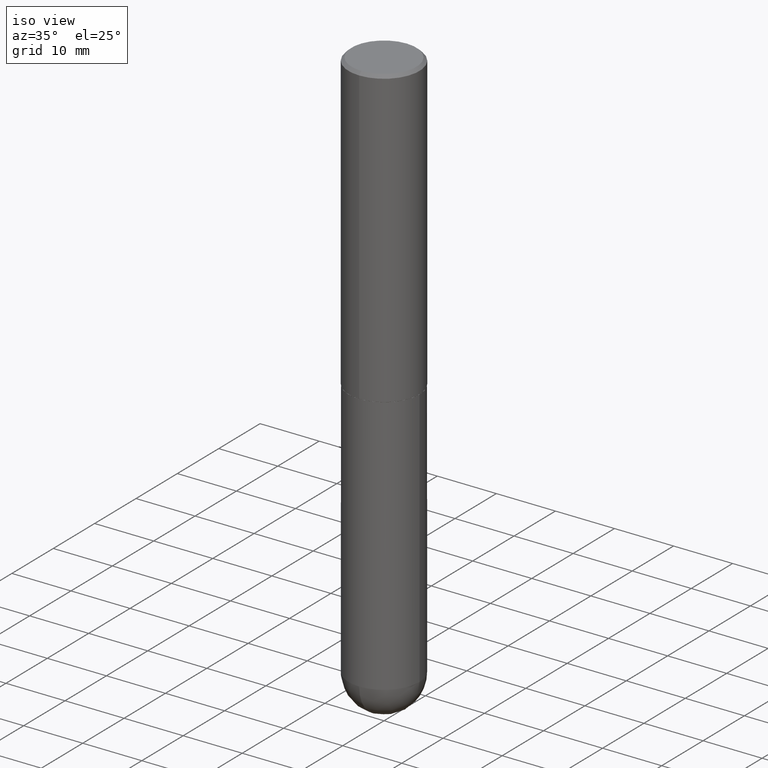
[diagram: clean part render]
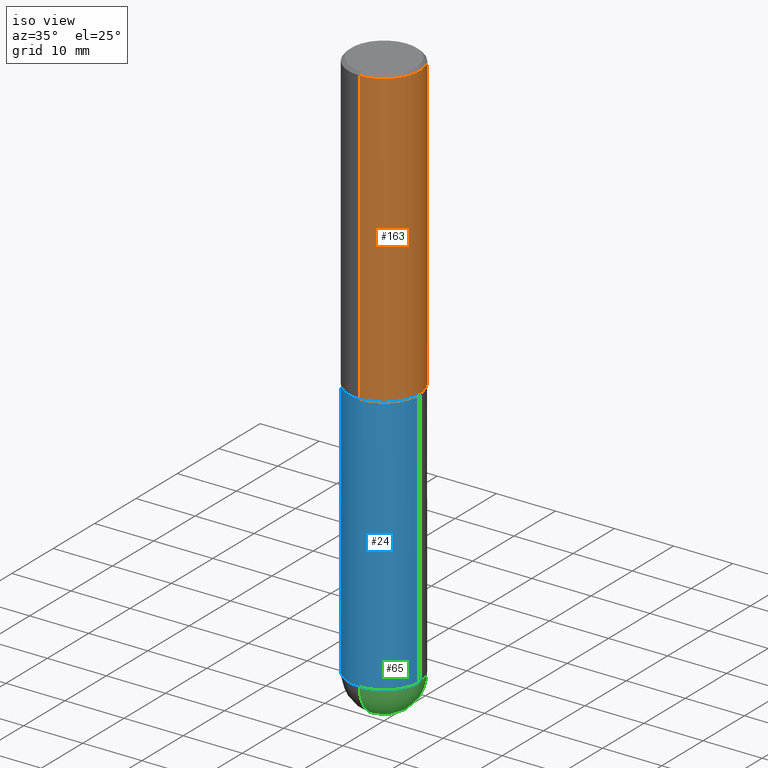
[diagram: same view with three faces highlighted in distinct colors, each labeled with its STEP entity id]
A machine part, iso view with three faces highlighted in distinct colors.
Their STEP definitions:

[orange] entity #163 — the highlighted cylindrical surface (partial cylindrical patch) has radius 5.9995 mm, axis along (-0, 0, 1).
#11 = VECTOR ( 'NONE', #204, 39.37007874015748143 ) ;
#22 = DIRECTION ( 'NONE',  ( -6.982962677686265922E-15, -1.000000000000000000, 3.487819265831411744E-15 ) ) ;
#30 = DIRECTION ( 'NONE',  ( -6.982962677686265133E-15, -1.000000000000000000, 3.469747663417773847E-15 ) ) ;
#41 = EDGE_CURVE ( 'NONE', #383, #289, #73, .T. ) ;
#48 = DIRECTION ( 'NONE',  ( -6.982962677686265922E-15, -1.000000000000000000, 3.493171675597534146E-15 ) ) ;
#53 = CARTESIAN_POINT ( 'NONE',  ( 4.809137526040556277E-29, -6.872815271738149679E-15, -1.967500000000000249 ) ) ;
#60 = ORIENTED_EDGE ( 'NONE', *, *, #70, .F. ) ;
#66 = ORIENTED_EDGE ( 'NONE', *, *, #41, .T. ) ;
#70 = EDGE_CURVE ( 'NONE', #160, #131, #397, .T. ) ;
#73 = LINE ( 'NONE', #167, #11 ) ;
#74 = DIRECTION ( 'NONE',  ( -2.444288450338274442E-29, 3.493171675597534541E-15, 1.000000000000000000 ) ) ;
#77 = VECTOR ( 'NONE', #74, 39.37007874015748143 ) ;
#123 = ORIENTED_EDGE ( 'NONE', *, *, #208, .F. ) ;
#131 = VERTEX_POINT ( 'NONE', #171 ) ;
#134 = CARTESIAN_POINT ( 'NONE',  ( -1.649375784469449391E-15, -0.2362000000000070710, -1.967499999999999361 ) ) ;
#137 = CIRCLE ( 'NONE', #379, 0.2362000000000002153 ) ;
#160 = VERTEX_POINT ( 'NONE', #134 ) ;
#163 = ADVANCED_FACE ( 'NONE', ( #207 ), #360, .T. ) ;
#167 = CARTESIAN_POINT ( 'NONE',  ( 1.678301941865357183E-15, 0.2362000000000001043, -8.250871497761379229E-16 ) ) ;
#171 = CARTESIAN_POINT ( 'NONE',  ( -1.620449627073635079E-15, -0.2362000000000000766, -0.01999999999999922673 ) ) ;
#204 = DIRECTION ( 'NONE',  ( -2.444288450338274442E-29, 3.493171675597534541E-15, 1.000000000000000000 ) ) ;
#207 = FACE_OUTER_BOUND ( 'NONE', #230, .T. ) ;
#208 = EDGE_CURVE ( 'NONE', #131, #289, #316, .T. ) ;
#230 = EDGE_LOOP ( 'NONE', ( #287, #66, #123, #60 ) ) ;
#240 = CARTESIAN_POINT ( 'NONE',  ( -1.649375784469496722E-15, -0.2362000000000001043, 8.250871497761379229E-16 ) ) ;
#244 = CARTESIAN_POINT ( 'NONE',  ( 1.649375784469496525E-15, 0.2361999999999999378, -0.02000000000000087472 ) ) ;
#249 = AXIS2_PLACEMENT_3D ( 'NONE', #376, #372, #22 ) ;
#252 = CARTESIAN_POINT ( 'NONE',  ( 1.678301941865381835E-15, 0.2361999999999933597, -1.967500000000001137 ) ) ;
#260 = EDGE_CURVE ( 'NONE', #160, #383, #137, .T. ) ;
#261 = CARTESIAN_POINT ( 'NONE',  ( 0.000000000000000000, 0.000000000000000000, 0.000000000000000000 ) ) ;
#274 = DIRECTION ( 'NONE',  ( -2.444288450338274722E-29, 3.493171675597534541E-15, 1.000000000000000000 ) ) ;
#287 = ORIENTED_EDGE ( 'NONE', *, *, #260, .T. ) ;
#289 = VERTEX_POINT ( 'NONE', #244 ) ;
#316 = CIRCLE ( 'NONE', #249, 0.2361999999999999933 ) ;
#326 = AXIS2_PLACEMENT_3D ( 'NONE', #261, #336, #48 ) ;
#336 = DIRECTION ( 'NONE',  ( -2.444288450338274722E-29, 3.493171675597534541E-15, 1.000000000000000000 ) ) ;
#360 = CYLINDRICAL_SURFACE ( 'NONE', #326, 0.2362000000000001043 ) ;
#372 = DIRECTION ( 'NONE',  ( -2.444288450338274722E-29, 3.493171675597534541E-15, 1.000000000000000000 ) ) ;
#376 = CARTESIAN_POINT ( 'NONE',  ( 4.888576900676561635E-31, -6.986343351195086880E-17, -0.02000000000000005246 ) ) ;
#379 = AXIS2_PLACEMENT_3D ( 'NONE', #53, #274, #30 ) ;
#383 = VERTEX_POINT ( 'NONE', #252 ) ;
#397 = LINE ( 'NONE', #240, #77 ) ;

[blue] entity #24 — the highlighted cylindrical surface (partial cylindrical patch) has radius 5.9995 mm, axis along (-0, 0, 1).
#1 = ORIENTED_EDGE ( 'NONE', *, *, #42, .F. ) ;
#2 = VECTOR ( 'NONE', #267, 39.37007874015748143 ) ;
#10 = CARTESIAN_POINT ( 'NONE',  ( 0.000000000000000000, 0.000000000000000000, 0.000000000000000000 ) ) ;
#16 = CARTESIAN_POINT ( 'NONE',  ( -0.2361999999999999933, -8.218825635286365458E-15, -1.968500000000000139 ) ) ;
#20 = AXIS2_PLACEMENT_3D ( 'NONE', #272, #152, #342 ) ;
#24 = ADVANCED_FACE ( 'NONE', ( #357 ), #293, .T. ) ;
#38 = ORIENTED_EDGE ( 'NONE', *, *, #130, .T. ) ;
#40 = VERTEX_POINT ( 'NONE', #16 ) ;
#42 = EDGE_CURVE ( 'NONE', #317, #40, #138, .T. ) ;
#69 = ORIENTED_EDGE ( 'NONE', *, *, #291, .T. ) ;
#71 = AXIS2_PLACEMENT_3D ( 'NONE', #10, #296, #142 ) ;
#75 = CARTESIAN_POINT ( 'NONE',  ( -0.2361999999999999933, 1.678301941865356591E-15, -1.161852468318208757E-29 ) ) ;
#85 = LINE ( 'NONE', #212, #369 ) ;
#88 = CARTESIAN_POINT ( 'NONE',  ( -0.2361999999999999933, -8.218825635286368613E-15, -3.700800000000000090 ) ) ;
#103 = CARTESIAN_POINT ( 'NONE',  ( 9.050190957929953666E-29, -1.292127413879071357E-14, -3.700800000000000090 ) ) ;
#121 = AXIS2_PLACEMENT_3D ( 'NONE', #103, #203, #329 ) ;
#130 = EDGE_CURVE ( 'NONE', #354, #408, #232, .T. ) ;
#138 = LINE ( 'NONE', #75, #2 ) ;
#142 = DIRECTION ( 'NONE',  ( 1.000000000000000000, -6.982962677686266711E-15, 4.876176775795936353E-29 ) ) ;
#152 = DIRECTION ( 'NONE',  ( -2.445468806185136597E-29, 3.491481338843145583E-15, 1.000000000000000000 ) ) ;
#177 = DIRECTION ( 'NONE',  ( -2.445468806185136877E-29, 3.491481338843145188E-15, 1.000000000000000000 ) ) ;
#192 = ORIENTED_EDGE ( 'NONE', *, *, #353, .F. ) ;
#195 = EDGE_CURVE ( 'NONE', #408, #352, #85, .T. ) ;
#197 = CARTESIAN_POINT ( 'NONE',  ( 0.2361999999999999933, -8.522356799982228232E-15, -1.968500000000000139 ) ) ;
#200 = ORIENTED_EDGE ( 'NONE', *, *, #195, .T. ) ;
#203 = DIRECTION ( 'NONE',  ( -2.445468806185136597E-29, 3.491481338843145583E-15, 1.000000000000000000 ) ) ;
#205 = AXIS2_PLACEMENT_3D ( 'NONE', #412, #321, #256 ) ;
#212 = CARTESIAN_POINT ( 'NONE',  ( 0.2361999999999999933, -1.649375784469496131E-15, 1.151752954443000088E-29 ) ) ;
#232 = CIRCLE ( 'NONE', #121, 0.2361999999999999933 ) ;
#245 = CIRCLE ( 'NONE', #205, 0.2361999999999999933 ) ;
#256 = DIRECTION ( 'NONE',  ( 1.000000000000000000, -6.982962677686269077E-15, 0.000000000000000000 ) ) ;
#267 = DIRECTION ( 'NONE',  ( -2.445468806185136877E-29, 3.491481338843145188E-15, 1.000000000000000000 ) ) ;
#272 = CARTESIAN_POINT ( 'NONE',  ( 9.050190957929953666E-29, -1.292127413879071357E-14, -3.700800000000000090 ) ) ;
#282 = CARTESIAN_POINT ( 'NONE',  ( -1.678301941865268633E-15, -0.2362000000000132882, -3.700799999999998757 ) ) ;
#291 = EDGE_CURVE ( 'NONE', #317, #354, #395, .T. ) ;
#293 = CYLINDRICAL_SURFACE ( 'NONE', #71, 0.2361999999999999933 ) ;
#296 = DIRECTION ( 'NONE',  ( -2.445468806185136597E-29, 3.491481338843145583E-15, 1.000000000000000000 ) ) ;
#317 = VERTEX_POINT ( 'NONE', #88 ) ;
#321 = DIRECTION ( 'NONE',  ( -2.445468806185136597E-29, 3.491481338843145583E-15, 1.000000000000000000 ) ) ;
#325 = EDGE_LOOP ( 'NONE', ( #1, #69, #38, #200, #192 ) ) ;
#329 = DIRECTION ( 'NONE',  ( 1.000000000000000000, -6.982962677686265133E-15, 0.000000000000000000 ) ) ;
#342 = DIRECTION ( 'NONE',  ( 1.000000000000000000, -6.982962677686265133E-15, 0.000000000000000000 ) ) ;
#352 = VERTEX_POINT ( 'NONE', #197 ) ;
#353 = EDGE_CURVE ( 'NONE', #40, #352, #245, .T. ) ;
#354 = VERTEX_POINT ( 'NONE', #282 ) ;
#357 = FACE_OUTER_BOUND ( 'NONE', #325, .T. ) ;
#369 = VECTOR ( 'NONE', #177, 39.37007874015748143 ) ;
#395 = CIRCLE ( 'NONE', #20, 0.2361999999999999933 ) ;
#407 = CARTESIAN_POINT ( 'NONE',  ( 0.2361999999999999933, -1.154650336162122153E-14, -3.700800000000000090 ) ) ;
#408 = VERTEX_POINT ( 'NONE', #407 ) ;
#412 = CARTESIAN_POINT ( 'NONE',  ( 4.813905344975441835E-29, -6.872981015512731707E-15, -1.968500000000000139 ) ) ;

[green] entity #65 — the highlighted spherical surface has radius 5.9995 mm.
#12 = CIRCLE ( 'NONE', #158, 0.2361999999999999933 ) ;
#49 = DIRECTION ( 'NONE',  ( -7.105427357601001070E-15, -1.000000000000000000, 0.000000000000000000 ) ) ;
#57 = CIRCLE ( 'NONE', #120, 0.2362000000000002709 ) ;
#58 = EDGE_CURVE ( 'NONE', #216, #354, #57, .T. ) ;
#65 = ADVANCED_FACE ( 'NONE', ( #292 ), #337, .T. ) ;
#99 = DIRECTION ( 'NONE',  ( 1.000000000000000000, -6.982962677686265133E-15, 0.000000000000000000 ) ) ;
#103 = CARTESIAN_POINT ( 'NONE',  ( 9.050190957929953666E-29, -1.292127413879071357E-14, -3.700800000000000090 ) ) ;
#120 = AXIS2_PLACEMENT_3D ( 'NONE', #399, #237, #49 ) ;
#121 = AXIS2_PLACEMENT_3D ( 'NONE', #103, #203, #329 ) ;
#127 = ORIENTED_EDGE ( 'NONE', *, *, #58, .F. ) ;
#130 = EDGE_CURVE ( 'NONE', #354, #408, #232, .T. ) ;
#158 = AXIS2_PLACEMENT_3D ( 'NONE', #400, #248, #99 ) ;
#179 = CARTESIAN_POINT ( 'NONE',  ( 9.306790425912204830E-29, -1.420568132046758614E-14, -3.937000000000000277 ) ) ;
#203 = DIRECTION ( 'NONE',  ( -2.445468806185136597E-29, 3.491481338843145583E-15, 1.000000000000000000 ) ) ;
#216 = VERTEX_POINT ( 'NONE', #179 ) ;
#217 = DIRECTION ( 'NONE',  ( 1.000000000000000000, -6.982962677686265922E-15, 4.883557194083112340E-29 ) ) ;
#218 = CARTESIAN_POINT ( 'NONE',  ( 1.649375784469585666E-15, 0.2361999999999869759, -3.700800000000000978 ) ) ;
#222 = ORIENTED_EDGE ( 'NONE', *, *, #343, .F. ) ;
#232 = CIRCLE ( 'NONE', #121, 0.2361999999999999933 ) ;
#237 = DIRECTION ( 'NONE',  ( -1.000000000000000000, 7.105427357601001070E-15, -4.926315508542082329E-29 ) ) ;
#248 = DIRECTION ( 'NONE',  ( -2.445468806185136597E-29, 3.491481338843145583E-15, 1.000000000000000000 ) ) ;
#250 = VERTEX_POINT ( 'NONE', #218 ) ;
#251 = ORIENTED_EDGE ( 'NONE', *, *, #130, .F. ) ;
#264 = CARTESIAN_POINT ( 'NONE',  ( 8.719071180016067419E-29, -1.339545650693076387E-14, -3.700800000000000090 ) ) ;
#282 = CARTESIAN_POINT ( 'NONE',  ( -1.678301941865268633E-15, -0.2362000000000132882, -3.700799999999998757 ) ) ;
#283 = EDGE_LOOP ( 'NONE', ( #127, #385, #222, #251 ) ) ;
#292 = FACE_OUTER_BOUND ( 'NONE', #283, .T. ) ;
#294 = DIRECTION ( 'NONE',  ( 6.982962677686265922E-15, 1.000000000000000000, -4.626330217890364603E-15 ) ) ;
#310 = CARTESIAN_POINT ( 'NONE',  ( 8.719071180016067419E-29, -1.339545650693076387E-14, -3.700800000000000090 ) ) ;
#323 = EDGE_CURVE ( 'NONE', #216, #250, #334, .T. ) ;
#329 = DIRECTION ( 'NONE',  ( 1.000000000000000000, -6.982962677686265133E-15, 0.000000000000000000 ) ) ;
#333 = AXIS2_PLACEMENT_3D ( 'NONE', #264, #394, #294 ) ;
#334 = CIRCLE ( 'NONE', #403, 0.2362000000000002709 ) ;
#337 = SPHERICAL_SURFACE ( 'NONE', #333, 0.2362000000000002709 ) ;
#343 = EDGE_CURVE ( 'NONE', #408, #250, #12, .T. ) ;
#345 = DIRECTION ( 'NONE',  ( 6.982962677686265922E-15, 1.000000000000000000, 0.000000000000000000 ) ) ;
#354 = VERTEX_POINT ( 'NONE', #282 ) ;
#385 = ORIENTED_EDGE ( 'NONE', *, *, #323, .T. ) ;
#394 = DIRECTION ( 'NONE',  ( -1.000000000000000000, 6.982962677686265922E-15, -4.883557194083112901E-29 ) ) ;
#399 = CARTESIAN_POINT ( 'NONE',  ( 8.719071180016067419E-29, -1.339545650693076387E-14, -3.700800000000000090 ) ) ;
#400 = CARTESIAN_POINT ( 'NONE',  ( 9.050190957929953666E-29, -1.292127413879071357E-14, -3.700800000000000090 ) ) ;
#403 = AXIS2_PLACEMENT_3D ( 'NONE', #310, #217, #345 ) ;
#407 = CARTESIAN_POINT ( 'NONE',  ( 0.2361999999999999933, -1.154650336162122153E-14, -3.700800000000000090 ) ) ;
#408 = VERTEX_POINT ( 'NONE', #407 ) ;